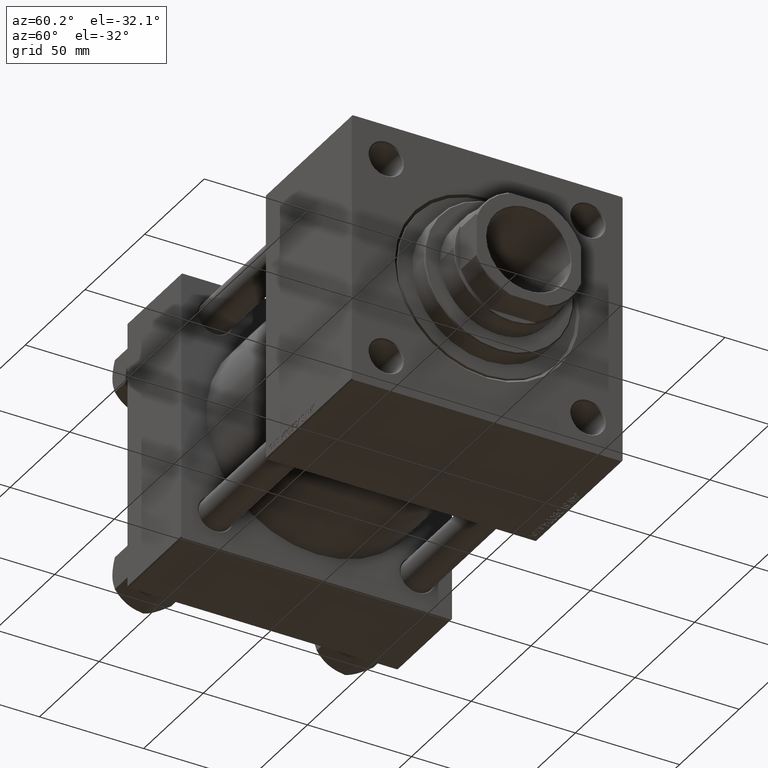
[diagram: clean part render]
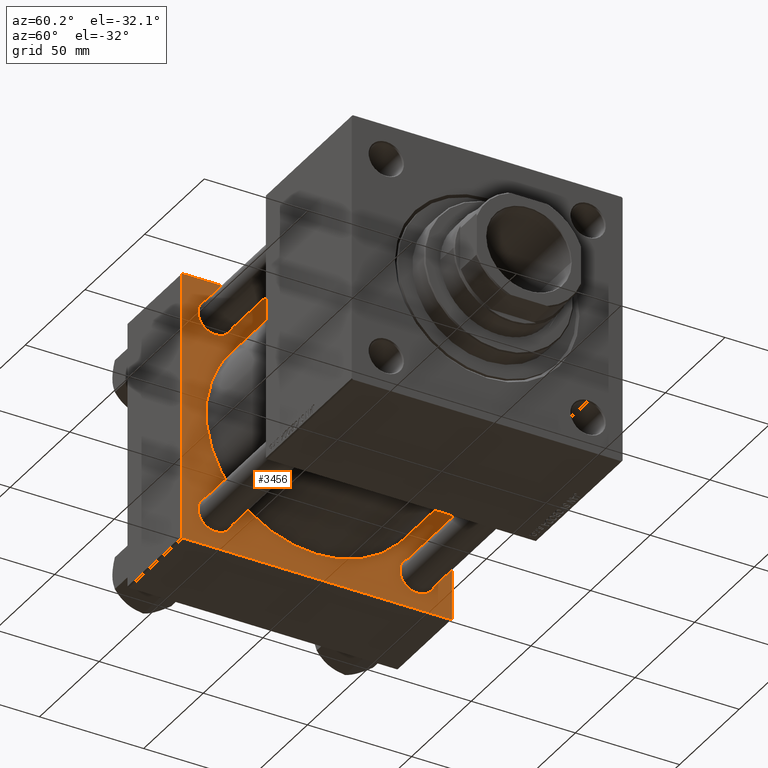
[diagram: same view with one face highlighted and labeled with its STEP entity id]
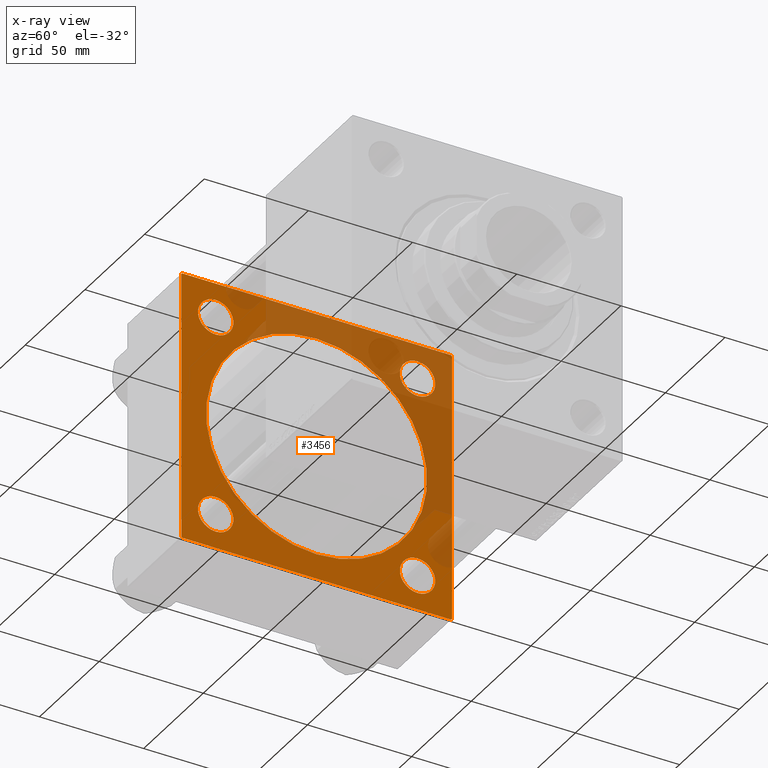
[diagram: x-ray of the same camera — body ghosted, the highlighted face saturated]
A machine part, auxiliary view. The second image highlights one B-rep face of the part: STEP entity #3456.
The next image is the same camera in x-ray: the body ghosted, the highlighted face saturated — about 38% of this face is hidden behind the body in this view.
In plain terms, the highlighted planar face has unit normal (-1, 0, 0).
Its self-contained STEP definition (entity closure, byte-faithful):
#184 = CARTESIAN_POINT ( 'NONE',  ( 45.00000000000000000, -65.00000000000000000, 64.50000000000000000 ) ) ;
#207 = EDGE_CURVE ( 'NONE', #1291, #26590, #22170, .T. ) ;
#694 = CARTESIAN_POINT ( 'NONE',  ( 45.00000000000000000, 48.45000000000000995, -56.94999999999999574 ) ) ;
#785 = VECTOR ( 'NONE', #25328, 1000.000000000000000 ) ;
#872 = CIRCLE ( 'NONE', #13966, 53.00000000000000711 ) ;
#938 = AXIS2_PLACEMENT_3D ( 'NONE', #8439, #44101, #8944 ) ;
#1291 = VERTEX_POINT ( 'NONE', #694 ) ;
#1409 = LINE ( 'NONE', #25012, #20697 ) ;
#1923 = VECTOR ( 'NONE', #19245, 1000.000000000000000 ) ;
#2345 = VERTEX_POINT ( 'NONE', #44051 ) ;
#2764 = CARTESIAN_POINT ( 'NONE',  ( 45.00000000000000000, 48.45000000000000995, 48.45000000000001705 ) ) ;
#2841 = CARTESIAN_POINT ( 'NONE',  ( 45.00000000000000000, 48.45000000000000995, 39.95000000000003126 ) ) ;
#3329 = VERTEX_POINT ( 'NONE', #19441 ) ;
#3456 = ADVANCED_FACE ( 'NONE', ( #48667, #13505, #29150, #25300, #40960, #5808 ), #37110, .F. ) ;
#5029 = EDGE_CURVE ( 'NONE', #46013, #2345, #11829, .T. ) ;
#5286 = CARTESIAN_POINT ( 'NONE',  ( 45.00000000000000000, -48.44999999999999574, -56.95000000000000995 ) ) ;
#5739 = DIRECTION ( 'NONE',  ( 0.000000000000000000, 0.000000000000000000, 1.000000000000000000 ) ) ;
#5808 = FACE_OUTER_BOUND ( 'NONE', #42738, .T. ) ;
#5993 = DIRECTION ( 'NONE',  ( 0.000000000000000000, 0.000000000000000000, 1.000000000000000000 ) ) ;
#6624 = AXIS2_PLACEMENT_3D ( 'NONE', #11007, #42310, #26666 ) ;
#6795 = CARTESIAN_POINT ( 'NONE',  ( 45.00000000000000000, 65.00000000000000000, 64.49999999999998579 ) ) ;
#7322 = CIRCLE ( 'NONE', #20464, 8.499999999999980460 ) ;
#7518 = VERTEX_POINT ( 'NONE', #10837 ) ;
#7615 = EDGE_CURVE ( 'NONE', #13997, #33391, #48542, .T. ) ;
#8113 = DIRECTION ( 'NONE',  ( 0.000000000000000000, 0.000000000000000000, 1.000000000000000000 ) ) ;
#8439 = CARTESIAN_POINT ( 'NONE',  ( 45.00000000000000000, -2.602085213965210642E-15, 0.000000000000000000 ) ) ;
#8678 = CARTESIAN_POINT ( 'NONE',  ( 45.00000000000000000, -48.44999999999999574, -48.45000000000003126 ) ) ;
#8721 = CIRCLE ( 'NONE', #43970, 8.499999999999980460 ) ;
#8803 = LINE ( 'NONE', #22993, #33772 ) ;
#8944 = DIRECTION ( 'NONE',  ( 0.000000000000000000, 0.000000000000000000, 1.000000000000000000 ) ) ;
#9297 = DIRECTION ( 'NONE',  ( 0.000000000000000000, 0.7071067811865279218, -0.7071067811865671127 ) ) ;
#9903 = DIRECTION ( 'NONE',  ( -0.000000000000000000, 0.000000000000000000, 1.000000000000000000 ) ) ;
#10653 = VECTOR ( 'NONE', #13378, 1000.000000000000000 ) ;
#10837 = CARTESIAN_POINT ( 'NONE',  ( 45.00000000000000000, -48.44999999999999574, 56.95000000000000995 ) ) ;
#10932 = CARTESIAN_POINT ( 'NONE',  ( 45.00000000000000000, 48.45000000000000995, 56.94999999999999574 ) ) ;
#11007 = CARTESIAN_POINT ( 'NONE',  ( 45.00000000000000000, 48.45000000000000995, 48.45000000000001705 ) ) ;
#11034 = EDGE_CURVE ( 'NONE', #15604, #19033, #28808, .T. ) ;
#11404 = CARTESIAN_POINT ( 'NONE',  ( 45.00000000000000000, -64.49999999999994316, -65.00000000000000000 ) ) ;
#11423 = EDGE_CURVE ( 'NONE', #26590, #1291, #33685, .T. ) ;
#11829 = LINE ( 'NONE', #23112, #41038 ) ;
#12060 = DIRECTION ( 'NONE',  ( 0.000000000000000000, 0.000000000000000000, 1.000000000000000000 ) ) ;
#13258 = ORIENTED_EDGE ( 'NONE', *, *, #7615, .T. ) ;
#13317 = EDGE_CURVE ( 'NONE', #19033, #15604, #872, .T. ) ;
#13378 = DIRECTION ( 'NONE',  ( 0.000000000000000000, -1.000000000000000000, -1.067522139062650425E-16 ) ) ;
#13505 = FACE_BOUND ( 'NONE', #39921, .T. ) ;
#13966 = AXIS2_PLACEMENT_3D ( 'NONE', #24747, #29090, #5739 ) ;
#13997 = VERTEX_POINT ( 'NONE', #30334 ) ;
#14030 = CARTESIAN_POINT ( 'NONE',  ( 45.00000000000000000, 65.00000000000000000, -64.99999999999998579 ) ) ;
#14174 = EDGE_LOOP ( 'NONE', ( #46121, #24959 ) ) ;
#14193 = DIRECTION ( 'NONE',  ( -1.000000000000000000, 0.000000000000000000, -0.000000000000000000 ) ) ;
#15303 = DIRECTION ( 'NONE',  ( 0.000000000000000000, 0.000000000000000000, -1.000000000000000000 ) ) ;
#15436 = ORIENTED_EDGE ( 'NONE', *, *, #21343, .T. ) ;
#15604 = VERTEX_POINT ( 'NONE', #42938 ) ;
#16558 = AXIS2_PLACEMENT_3D ( 'NONE', #49591, #14193, #5993 ) ;
#16573 = ORIENTED_EDGE ( 'NONE', *, *, #22205, .T. ) ;
#17326 = DIRECTION ( 'NONE',  ( 0.000000000000000000, -0.7071067811865474617, 0.7071067811865474617 ) ) ;
#17333 = ORIENTED_EDGE ( 'NONE', *, *, #11034, .F. ) ;
#17343 = DIRECTION ( 'NONE',  ( -1.000000000000000000, 0.000000000000000000, -0.000000000000000000 ) ) ;
#17618 = CARTESIAN_POINT ( 'NONE',  ( 45.00000000000000000, 0.000000000000000000, 0.000000000000000000 ) ) ;
#17731 = DIRECTION ( 'NONE',  ( 0.000000000000000000, 0.000000000000000000, 1.000000000000000000 ) ) ;
#17819 = ORIENTED_EDGE ( 'NONE', *, *, #35485, .T. ) ;
#18317 = ORIENTED_EDGE ( 'NONE', *, *, #207, .T. ) ;
#18903 = VERTEX_POINT ( 'NONE', #10932 ) ;
#19033 = VERTEX_POINT ( 'NONE', #49823 ) ;
#19245 = DIRECTION ( 'NONE',  ( 0.000000000000000000, 0.000000000000000000, -1.000000000000000000 ) ) ;
#19321 = CIRCLE ( 'NONE', #49582, 8.499999999999980460 ) ;
#19441 = CARTESIAN_POINT ( 'NONE',  ( 45.00000000000000000, -48.44999999999999574, 39.95000000000004547 ) ) ;
#20464 = AXIS2_PLACEMENT_3D ( 'NONE', #2764, #37913, #49462 ) ;
#20485 = EDGE_CURVE ( 'NONE', #7518, #3329, #28846, .T. ) ;
#20697 = VECTOR ( 'NONE', #17326, 1000.000000000000114 ) ;
#20930 = LINE ( 'NONE', #41183, #27430 ) ;
#21343 = EDGE_CURVE ( 'NONE', #44074, #13997, #1409, .T. ) ;
#21674 = EDGE_CURVE ( 'NONE', #23971, #34969, #28807, .T. ) ;
#21903 = CARTESIAN_POINT ( 'NONE',  ( 45.00000000000000000, 48.45000000000000995, -39.95000000000003126 ) ) ;
#22170 = CIRCLE ( 'NONE', #27932, 8.499999999999980460 ) ;
#22205 = EDGE_CURVE ( 'NONE', #48753, #23971, #8803, .T. ) ;
#22830 = ORIENTED_EDGE ( 'NONE', *, *, #21674, .T. ) ;
#22924 = AXIS2_PLACEMENT_3D ( 'NONE', #40277, #32319, #12060 ) ;
#22993 = CARTESIAN_POINT ( 'NONE',  ( 45.00000000000000000, -65.00000000000000000, 65.00000000000000000 ) ) ;
#23112 = CARTESIAN_POINT ( 'NONE',  ( 45.00000000000000000, 65.00000000000000000, -64.49999999999995737 ) ) ;
#23876 = EDGE_CURVE ( 'NONE', #44074, #2345, #43104, .T. ) ;
#23971 = VERTEX_POINT ( 'NONE', #33059 ) ;
#24747 = CARTESIAN_POINT ( 'NONE',  ( 45.00000000000000000, -2.602085213965210642E-15, 0.000000000000000000 ) ) ;
#24959 = ORIENTED_EDGE ( 'NONE', *, *, #44922, .T. ) ;
#25012 = CARTESIAN_POINT ( 'NONE',  ( 45.00000000000000000, 64.49999999999997158, 65.00000000000001421 ) ) ;
#25271 = CARTESIAN_POINT ( 'NONE',  ( 45.00000000000000000, 48.45000000000000995, -48.45000000000001705 ) ) ;
#25300 = FACE_BOUND ( 'NONE', #41376, .T. ) ;
#25328 = DIRECTION ( 'NONE',  ( 0.000000000000000000, -1.000000000000000000, -1.067522139062650425E-16 ) ) ;
#25883 = CARTESIAN_POINT ( 'NONE',  ( 45.00000000000000000, 64.49999999999997158, -64.99999999999998579 ) ) ;
#26570 = EDGE_CURVE ( 'NONE', #33391, #48753, #20930, .T. ) ;
#26590 = VERTEX_POINT ( 'NONE', #21903 ) ;
#26666 = DIRECTION ( 'NONE',  ( 0.000000000000000000, 0.000000000000000000, 1.000000000000000000 ) ) ;
#27430 = VECTOR ( 'NONE', #37563, 1000.000000000000000 ) ;
#27627 = VERTEX_POINT ( 'NONE', #50574 ) ;
#27932 = AXIS2_PLACEMENT_3D ( 'NONE', #25271, #17343, #34153 ) ;
#28753 = CARTESIAN_POINT ( 'NONE',  ( 45.00000000000000000, -64.49999999999997158, 65.00000000000000000 ) ) ;
#28807 = LINE ( 'NONE', #44204, #37082 ) ;
#28808 = CIRCLE ( 'NONE', #938, 53.00000000000000711 ) ;
#28846 = CIRCLE ( 'NONE', #16558, 8.499999999999980460 ) ;
#28910 = EDGE_LOOP ( 'NONE', ( #17819, #44253 ) ) ;
#29090 = DIRECTION ( 'NONE',  ( 1.000000000000000000, -0.000000000000000000, 0.000000000000000000 ) ) ;
#29150 = FACE_BOUND ( 'NONE', #28910, .T. ) ;
#29630 = EDGE_CURVE ( 'NONE', #48850, #27627, #19321, .T. ) ;
#29772 = DIRECTION ( 'NONE',  ( -1.000000000000000000, 0.000000000000000000, -0.000000000000000000 ) ) ;
#30334 = CARTESIAN_POINT ( 'NONE',  ( 45.00000000000000000, 64.49999999999997158, 65.00000000000001421 ) ) ;
#31961 = AXIS2_PLACEMENT_3D ( 'NONE', #17618, #33249, #9903 ) ;
#32319 = DIRECTION ( 'NONE',  ( -1.000000000000000000, 0.000000000000000000, -0.000000000000000000 ) ) ;
#32788 = CIRCLE ( 'NONE', #6624, 8.499999999999980460 ) ;
#33059 = CARTESIAN_POINT ( 'NONE',  ( 45.00000000000000000, -65.00000000000000000, -64.49999999999991473 ) ) ;
#33249 = DIRECTION ( 'NONE',  ( -1.000000000000000000, 0.000000000000000000, -0.000000000000000000 ) ) ;
#33391 = VERTEX_POINT ( 'NONE', #28753 ) ;
#33685 = CIRCLE ( 'NONE', #36175, 8.499999999999980460 ) ;
#33772 = VECTOR ( 'NONE', #15303, 1000.000000000000000 ) ;
#33777 = LINE ( 'NONE', #14030, #785 ) ;
#34153 = DIRECTION ( 'NONE',  ( 0.000000000000000000, 0.000000000000000000, 1.000000000000000000 ) ) ;
#34969 = VERTEX_POINT ( 'NONE', #11404 ) ;
#35485 = EDGE_CURVE ( 'NONE', #3329, #7518, #8721, .T. ) ;
#35877 = DIRECTION ( 'NONE',  ( 0.000000000000000000, 0.000000000000000000, 1.000000000000000000 ) ) ;
#36175 = AXIS2_PLACEMENT_3D ( 'NONE', #44046, #40199, #8113 ) ;
#37082 = VECTOR ( 'NONE', #9297, 1000.000000000000000 ) ;
#37110 = PLANE ( 'NONE',  #31961 ) ;
#37563 = DIRECTION ( 'NONE',  ( -0.000000000000000000, -0.7071067811865672237, -0.7071067811865279218 ) ) ;
#37812 = ORIENTED_EDGE ( 'NONE', *, *, #5029, .T. ) ;
#37913 = DIRECTION ( 'NONE',  ( -1.000000000000000000, 0.000000000000000000, -0.000000000000000000 ) ) ;
#38628 = ORIENTED_EDGE ( 'NONE', *, *, #47766, .F. ) ;
#39921 = EDGE_LOOP ( 'NONE', ( #18317, #48870 ) ) ;
#40199 = DIRECTION ( 'NONE',  ( -1.000000000000000000, 0.000000000000000000, -0.000000000000000000 ) ) ;
#40277 = CARTESIAN_POINT ( 'NONE',  ( 45.00000000000000000, -48.44999999999999574, -48.45000000000003126 ) ) ;
#40350 = ORIENTED_EDGE ( 'NONE', *, *, #43894, .T. ) ;
#40960 = FACE_BOUND ( 'NONE', #45019, .T. ) ;
#41038 = VECTOR ( 'NONE', #50314, 1000.000000000000114 ) ;
#41183 = CARTESIAN_POINT ( 'NONE',  ( 45.00000000000000000, -65.00000000000000000, 64.50000000000000000 ) ) ;
#41376 = EDGE_LOOP ( 'NONE', ( #40350, #45713 ) ) ;
#42310 = DIRECTION ( 'NONE',  ( -1.000000000000000000, 0.000000000000000000, -0.000000000000000000 ) ) ;
#42738 = EDGE_LOOP ( 'NONE', ( #38628, #37812, #47223, #15436, #13258, #50375, #16573, #22830 ) ) ;
#42938 = CARTESIAN_POINT ( 'NONE',  ( 45.00000000000000000, -2.602085213965210642E-15, 53.00000000000000711 ) ) ;
#43104 = LINE ( 'NONE', #47452, #1923 ) ;
#43894 = EDGE_CURVE ( 'NONE', #45630, #18903, #7322, .T. ) ;
#43970 = AXIS2_PLACEMENT_3D ( 'NONE', #45431, #29772, #17731 ) ;
#44046 = CARTESIAN_POINT ( 'NONE',  ( 45.00000000000000000, 48.45000000000000995, -48.45000000000001705 ) ) ;
#44051 = CARTESIAN_POINT ( 'NONE',  ( 45.00000000000000000, 65.00000000000000000, -64.49999999999995737 ) ) ;
#44074 = VERTEX_POINT ( 'NONE', #6795 ) ;
#44101 = DIRECTION ( 'NONE',  ( 1.000000000000000000, -0.000000000000000000, 0.000000000000000000 ) ) ;
#44204 = CARTESIAN_POINT ( 'NONE',  ( 45.00000000000000000, -64.49999999999994316, -65.00000000000000000 ) ) ;
#44253 = ORIENTED_EDGE ( 'NONE', *, *, #20485, .T. ) ;
#44922 = EDGE_CURVE ( 'NONE', #27627, #48850, #45068, .T. ) ;
#45019 = EDGE_LOOP ( 'NONE', ( #17333, #49031 ) ) ;
#45068 = CIRCLE ( 'NONE', #22924, 8.499999999999980460 ) ;
#45431 = CARTESIAN_POINT ( 'NONE',  ( 45.00000000000000000, -48.44999999999999574, 48.45000000000003126 ) ) ;
#45630 = VERTEX_POINT ( 'NONE', #2841 ) ;
#45713 = ORIENTED_EDGE ( 'NONE', *, *, #50238, .T. ) ;
#46013 = VERTEX_POINT ( 'NONE', #25883 ) ;
#46121 = ORIENTED_EDGE ( 'NONE', *, *, #29630, .T. ) ;
#47223 = ORIENTED_EDGE ( 'NONE', *, *, #23876, .F. ) ;
#47452 = CARTESIAN_POINT ( 'NONE',  ( 45.00000000000000000, 65.00000000000000000, 65.00000000000001421 ) ) ;
#47699 = DIRECTION ( 'NONE',  ( -1.000000000000000000, 0.000000000000000000, -0.000000000000000000 ) ) ;
#47766 = EDGE_CURVE ( 'NONE', #46013, #34969, #33777, .T. ) ;
#48542 = LINE ( 'NONE', #49278, #10653 ) ;
#48667 = FACE_BOUND ( 'NONE', #14174, .T. ) ;
#48753 = VERTEX_POINT ( 'NONE', #184 ) ;
#48850 = VERTEX_POINT ( 'NONE', #5286 ) ;
#48870 = ORIENTED_EDGE ( 'NONE', *, *, #11423, .T. ) ;
#49031 = ORIENTED_EDGE ( 'NONE', *, *, #13317, .F. ) ;
#49278 = CARTESIAN_POINT ( 'NONE',  ( 45.00000000000000000, 65.00000000000000000, 65.00000000000001421 ) ) ;
#49462 = DIRECTION ( 'NONE',  ( 0.000000000000000000, 0.000000000000000000, 1.000000000000000000 ) ) ;
#49582 = AXIS2_PLACEMENT_3D ( 'NONE', #8678, #47699, #35877 ) ;
#49591 = CARTESIAN_POINT ( 'NONE',  ( 45.00000000000000000, -48.44999999999999574, 48.45000000000003126 ) ) ;
#49823 = CARTESIAN_POINT ( 'NONE',  ( 45.00000000000000000, 3.888542821515762466E-15, -53.00000000000000711 ) ) ;
#50238 = EDGE_CURVE ( 'NONE', #18903, #45630, #32788, .T. ) ;
#50314 = DIRECTION ( 'NONE',  ( -0.000000000000000000, 0.7071067811865474617, 0.7071067811865474617 ) ) ;
#50375 = ORIENTED_EDGE ( 'NONE', *, *, #26570, .T. ) ;
#50574 = CARTESIAN_POINT ( 'NONE',  ( 45.00000000000000000, -48.44999999999999574, -39.95000000000004547 ) ) ;